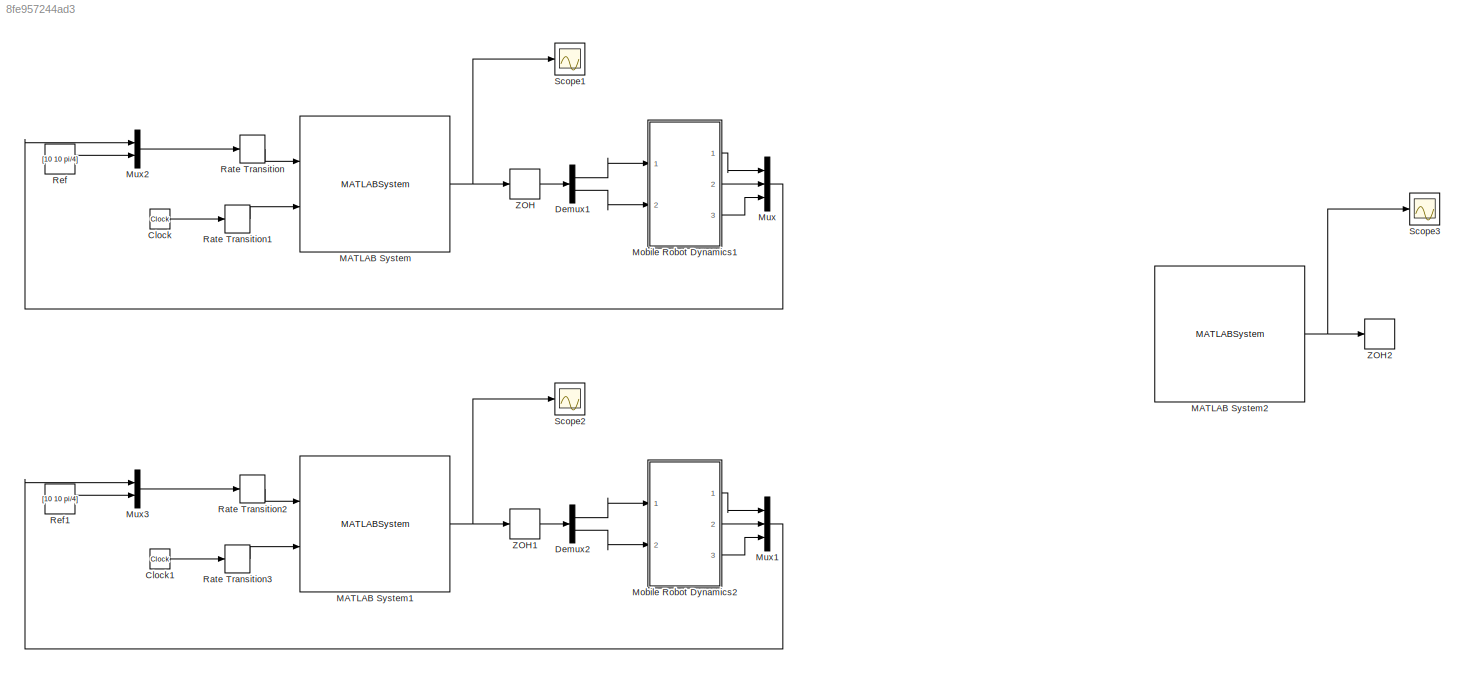
MODEL slx_8fe957244ad3
KIND model
CONFIG AbsTol = auto
CONFIG EnableMultiTasking = off
CONFIG FixedStep = auto
CONFIG MaxStep = auto
CONFIG MinStep = auto
CONFIG RelTol = 1e-3
CONFIG SampleTimeConstraint = Unconstrained
CONFIG Solver = FixedStepAuto
CONFIG SolverName = FixedStepAuto
CONFIG StartTime = 0.0
CONFIG StopTime = 100
BLOCK [Clock] Clock
BLOCK [Clock] Clock1
BLOCK [Demux] Demux1
  DisplayOption = bar
  Outputs = 2
  Ports = [1, 2]
BLOCK [Demux] Demux2
  DisplayOption = bar
  Outputs = 2
  Ports = [1, 2]
BLOCK [MATLABSystem] MATLAB System
  MaskDisplay = disp('controller');\nport_label('input',1,'x');\nport_label('input',2,'t');\nport_label('output',1,'u');
  MaskType = controller
  Ports = [2, 1]
  SimulateUsing = Interpreted execution
  System = controller
BLOCK [MATLABSystem] MATLAB System1
  MaskDisplay = disp('controller');\nport_label('input',1,'x');\nport_label('input',2,'t');\nport_label('output',1,'u');
  MaskType = controller
  Ports = [2, 1]
  SimulateUsing = Interpreted execution
  System = controller
BLOCK [MATLABSystem] MATLAB System2
  MaskDisplay = disp('controller');\nport_label('input',1,'x');\nport_label('input',2,'t');\nport_label('output',1,'u');
  MaskType = controller
  Ports = [2, 1]
  SimulateUsing = Interpreted execution
  System = controller
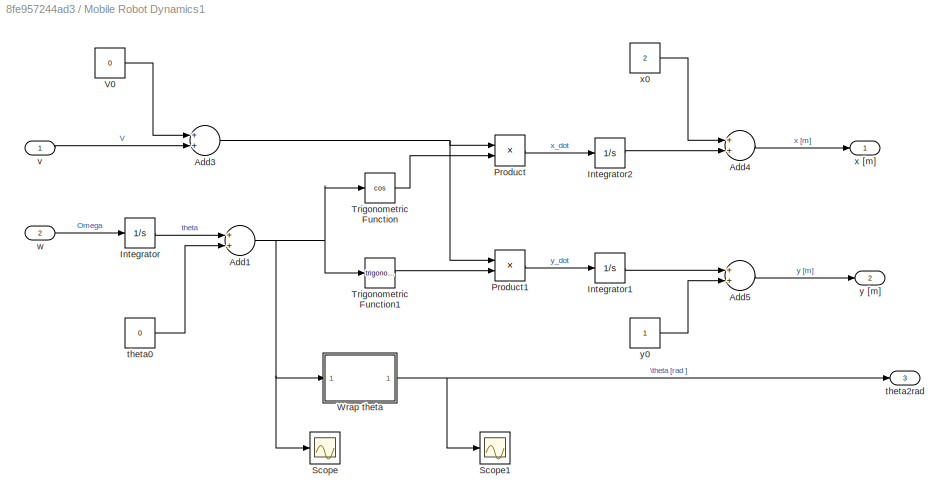
BLOCK [SubSystem] Mobile Robot Dynamics1
  Ports = [2, 3]
  RequestExecContextInheritance = off
BLOCK [Sum] Mobile Robot Dynamics1/Add1
  InputSameDT = off
  OutDataTypeStr = Inherit: Inherit via internal rule
  Ports = [2, 1]
  SaturateOnIntegerOverflow = off
BLOCK [Sum] Mobile Robot Dynamics1/Add3
  InputSameDT = off
  OutDataTypeStr = Inherit: Inherit via internal rule
  Ports = [2, 1]
  SaturateOnIntegerOverflow = off
BLOCK [Sum] Mobile Robot Dynamics1/Add4
  InputSameDT = off
  OutDataTypeStr = Inherit: Inherit via internal rule
  Ports = [2, 1]
  SaturateOnIntegerOverflow = off
BLOCK [Sum] Mobile Robot Dynamics1/Add5
  InputSameDT = off
  OutDataTypeStr = Inherit: Inherit via internal rule
  Ports = [2, 1]
  SaturateOnIntegerOverflow = off
BLOCK [Integrator] Mobile Robot Dynamics1/Integrator
  Ports = [1, 1]
BLOCK [Integrator] Mobile Robot Dynamics1/Integrator1
  Ports = [1, 1]
BLOCK [Integrator] Mobile Robot Dynamics1/Integrator2
  Ports = [1, 1]
BLOCK [Product] Mobile Robot Dynamics1/Product
  InputSameDT = off
  OutDataTypeStr = Inherit: Inherit via internal rule
  Ports = [2, 1]
  RndMeth = Floor
  SaturateOnIntegerOverflow = off
BLOCK [Product] Mobile Robot Dynamics1/Product1
  InputSameDT = off
  OutDataTypeStr = Inherit: Inherit via internal rule
  Ports = [2, 1]
  RndMeth = Floor
  SaturateOnIntegerOverflow = off
BLOCK [Scope] Mobile Robot Dynamics1/Scope
  Floating = off
  NumInputPorts = 1
  Ports = [1]
  ScopeSpecificationString = Simulink.scopes.TimeScopeBlockCfg('CurrentConfiguration', extmgr.ConfigurationSet(extmgr.Configuration('Core','General UI',true),extmgr.Configuration('Core','Source UI',true),extmgr.Configuration('Sources','WiredSimulink',true,'DataLoggingVariableName','ScopeData1'),extmgr.Configuration('Visuals','Time Domain',true,'SerializedDisplays',{struct('MinYLimReal','-0.1087','MaxYLimReal','0.31458','YLabe...<+1361ch>
BLOCK [Scope] Mobile Robot Dynamics1/Scope1
  Floating = off
  NumInputPorts = 1
  Ports = [1]
  ScopeSpecificationString = Simulink.scopes.TimeScopeBlockCfg('CurrentConfiguration', extmgr.ConfigurationSet(extmgr.Configuration('Core','General UI',true),extmgr.Configuration('Core','Source UI',true),extmgr.Configuration('Sources','WiredSimulink',true,'DataLoggingVariableName','ScopeData2'),extmgr.Configuration('Visuals','Time Domain',true,'SerializedDisplays',{struct('MinYLimReal','-0.78537','MaxYLimReal','7.06836','YLab...<+1359ch>
BLOCK [Trigonometry] Mobile Robot Dynamics1/Trigonometric Function
  Operator = cos
  Ports = [1, 1]
BLOCK [Trigonometry] Mobile Robot Dynamics1/Trigonometric Function1
  Ports = [1, 1]
BLOCK [Constant] Mobile Robot Dynamics1/V0 
  Value = 0
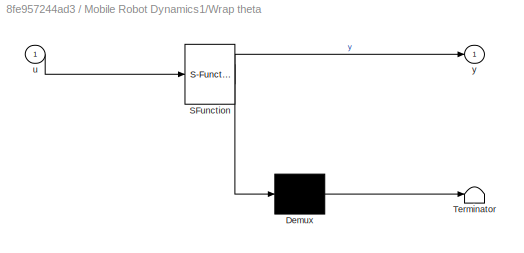
BLOCK [SubSystem] Mobile Robot Dynamics1/Wrap theta
  ErrorFcn = Stateflow.Translate.translate
  PermitHierarchicalResolution = ExplicitOnly
  Ports = [1, 1]
  RequestExecContextInheritance = off
  SFBlockType = MATLAB Function
  TreatAsAtomicUnit = on
BLOCK [Demux] Mobile Robot Dynamics1/Wrap theta/ Demux 
  Outputs = 1
  Ports = [1, 1]
BLOCK [S-Function] Mobile Robot Dynamics1/Wrap theta/ SFunction 
  EnableBusSupport = on
  FunctionName = sf_sfun
  PortCounts = [1 2]
  Ports = [1, 2]
  SFcnIsStateOwnerBlock = off
  SFunctionDeploymentMode = off
  Tag = Stateflow S-Function 1
BLOCK [Terminator] Mobile Robot Dynamics1/Wrap theta/ Terminator 
BLOCK [Inport] Mobile Robot Dynamics1/Wrap theta/u
  IconDisplay = Port number
BLOCK [Outport] Mobile Robot Dynamics1/Wrap theta/y
  IconDisplay = Port number
  VectorParamsAs1DForOutWhenUnconnected = off
BLOCK [Constant] Mobile Robot Dynamics1/theta0
  Value = 0
BLOCK [Outport] Mobile Robot Dynamics1/theta2rad
  IconDisplay = Port number
  Port = 3
  VectorParamsAs1DForOutWhenUnconnected = off
BLOCK [Inport] Mobile Robot Dynamics1/v
  IconDisplay = Port number
BLOCK [Inport] Mobile Robot Dynamics1/w
  IconDisplay = Port number
  Port = 2
BLOCK [Outport] Mobile Robot Dynamics1/x [m]
  IconDisplay = Port number
  VectorParamsAs1DForOutWhenUnconnected = off
BLOCK [Constant] Mobile Robot Dynamics1/x0
  Value = 2
BLOCK [Outport] Mobile Robot Dynamics1/y [m]
  IconDisplay = Port number
  Port = 2
  VectorParamsAs1DForOutWhenUnconnected = off
BLOCK [Constant] Mobile Robot Dynamics1/y0
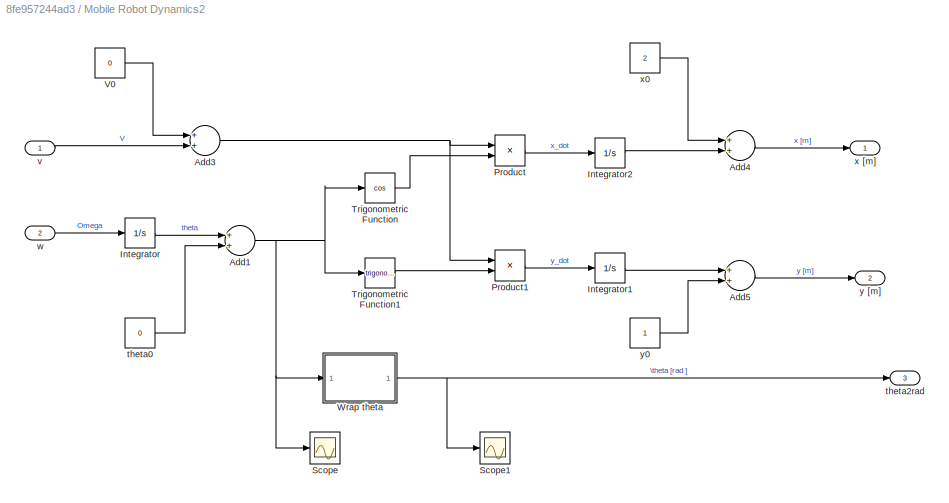
BLOCK [SubSystem] Mobile Robot Dynamics2
  Ports = [2, 3]
  RequestExecContextInheritance = off
BLOCK [Sum] Mobile Robot Dynamics2/Add1
  InputSameDT = off
  OutDataTypeStr = Inherit: Inherit via internal rule
  Ports = [2, 1]
  SaturateOnIntegerOverflow = off
BLOCK [Sum] Mobile Robot Dynamics2/Add3
  InputSameDT = off
  OutDataTypeStr = Inherit: Inherit via internal rule
  Ports = [2, 1]
  SaturateOnIntegerOverflow = off
BLOCK [Sum] Mobile Robot Dynamics2/Add4
  InputSameDT = off
  OutDataTypeStr = Inherit: Inherit via internal rule
  Ports = [2, 1]
  SaturateOnIntegerOverflow = off
BLOCK [Sum] Mobile Robot Dynamics2/Add5
  InputSameDT = off
  OutDataTypeStr = Inherit: Inherit via internal rule
  Ports = [2, 1]
  SaturateOnIntegerOverflow = off
BLOCK [Integrator] Mobile Robot Dynamics2/Integrator
  Ports = [1, 1]
BLOCK [Integrator] Mobile Robot Dynamics2/Integrator1
  Ports = [1, 1]
BLOCK [Integrator] Mobile Robot Dynamics2/Integrator2
  Ports = [1, 1]
BLOCK [Product] Mobile Robot Dynamics2/Product
  InputSameDT = off
  OutDataTypeStr = Inherit: Inherit via internal rule
  Ports = [2, 1]
  RndMeth = Floor
  SaturateOnIntegerOverflow = off
BLOCK [Product] Mobile Robot Dynamics2/Product1
  InputSameDT = off
  OutDataTypeStr = Inherit: Inherit via internal rule
  Ports = [2, 1]
  RndMeth = Floor
  SaturateOnIntegerOverflow = off
BLOCK [Scope] Mobile Robot Dynamics2/Scope
  Floating = off
  NumInputPorts = 1
  Ports = [1]
  ScopeSpecificationString = Simulink.scopes.TimeScopeBlockCfg('CurrentConfiguration', extmgr.ConfigurationSet(extmgr.Configuration('Core','General UI',true),extmgr.Configuration('Core','Source UI',true),extmgr.Configuration('Sources','WiredSimulink',true,'DataLoggingVariableName','ScopeData1'),extmgr.Configuration('Visuals','Time Domain',true,'SerializedDisplays',{struct('MinYLimReal','-0.1087','MaxYLimReal','0.31458','YLabe...<+1361ch>
BLOCK [Scope] Mobile Robot Dynamics2/Scope1
  Floating = off
  NumInputPorts = 1
  Ports = [1]
  ScopeSpecificationString = Simulink.scopes.TimeScopeBlockCfg('CurrentConfiguration', extmgr.ConfigurationSet(extmgr.Configuration('Core','General UI',true),extmgr.Configuration('Core','Source UI',true),extmgr.Configuration('Sources','WiredSimulink',true,'DataLoggingVariableName','ScopeData2'),extmgr.Configuration('Visuals','Time Domain',true,'SerializedDisplays',{struct('MinYLimReal','-0.78537','MaxYLimReal','7.06836','YLab...<+1359ch>
BLOCK [Trigonometry] Mobile Robot Dynamics2/Trigonometric Function
  Operator = cos
  Ports = [1, 1]
BLOCK [Trigonometry] Mobile Robot Dynamics2/Trigonometric Function1
  Ports = [1, 1]
BLOCK [Constant] Mobile Robot Dynamics2/V0 
  Value = 0
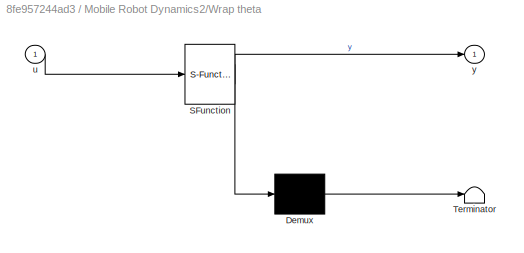
BLOCK [SubSystem] Mobile Robot Dynamics2/Wrap theta
  ErrorFcn = Stateflow.Translate.translate
  PermitHierarchicalResolution = ExplicitOnly
  Ports = [1, 1]
  RequestExecContextInheritance = off
  SFBlockType = MATLAB Function
  TreatAsAtomicUnit = on
BLOCK [Demux] Mobile Robot Dynamics2/Wrap theta/ Demux 
  Outputs = 1
  Ports = [1, 1]
BLOCK [S-Function] Mobile Robot Dynamics2/Wrap theta/ SFunction 
  EnableBusSupport = on
  FunctionName = sf_sfun
  PortCounts = [1 2]
  Ports = [1, 2]
  SFcnIsStateOwnerBlock = off
  SFunctionDeploymentMode = off
  Tag = Stateflow S-Function 2
BLOCK [Terminator] Mobile Robot Dynamics2/Wrap theta/ Terminator 
BLOCK [Inport] Mobile Robot Dynamics2/Wrap theta/u
  IconDisplay = Port number
BLOCK [Outport] Mobile Robot Dynamics2/Wrap theta/y
  IconDisplay = Port number
  VectorParamsAs1DForOutWhenUnconnected = off
BLOCK [Constant] Mobile Robot Dynamics2/theta0
  Value = 0
BLOCK [Outport] Mobile Robot Dynamics2/theta2rad
  IconDisplay = Port number
  Port = 3
  VectorParamsAs1DForOutWhenUnconnected = off
BLOCK [Inport] Mobile Robot Dynamics2/v
  IconDisplay = Port number
BLOCK [Inport] Mobile Robot Dynamics2/w
  IconDisplay = Port number
  Port = 2
BLOCK [Outport] Mobile Robot Dynamics2/x [m]
  IconDisplay = Port number
  VectorParamsAs1DForOutWhenUnconnected = off
BLOCK [Constant] Mobile Robot Dynamics2/x0
  Value = 2
BLOCK [Outport] Mobile Robot Dynamics2/y [m]
  IconDisplay = Port number
  Port = 2
  VectorParamsAs1DForOutWhenUnconnected = off
BLOCK [Constant] Mobile Robot Dynamics2/y0
BLOCK [Mux] Mux
  DisplayOption = bar
  Inputs = 3
  Ports = [3, 1]
BLOCK [Mux] Mux1
  DisplayOption = bar
  Inputs = 3
  Ports = [3, 1]
BLOCK [Mux] Mux2
  DisplayOption = bar
  Inputs = 2
  Ports = [2, 1]
BLOCK [Mux] Mux3
  DisplayOption = bar
  Inputs = 2
  Ports = [2, 1]
BLOCK [RateTransition] Rate Transition
  OutPortSampleTime = 0.5
BLOCK [RateTransition] Rate Transition1
  OutPortSampleTime = 0.5
BLOCK [RateTransition] Rate Transition2
  OutPortSampleTime = 0.5
BLOCK [RateTransition] Rate Transition3
  OutPortSampleTime = 0.5
BLOCK [Constant] Ref
  Value = [10 10 pi/4]
BLOCK [Constant] Ref1
  Value = [10 10 pi/4]
BLOCK [Scope] Scope1
  Floating = off
  NumInputPorts = 1
  Ports = [1]
  ScopeSpecificationString = Simulink.scopes.TimeScopeBlockCfg('CurrentConfiguration', extmgr.ConfigurationSet(extmgr.Configuration('Core','General UI',true),extmgr.Configuration('Core','Source UI',true),extmgr.Configuration('Sources','WiredSimulink',true,'DataLoggingVariableName','ScopeData1','DataLoggingLimitDataPoints',true,'DataLoggingSaveFormat','Array','DataLoggingDecimation','1','DataLoggingDecimateData',true),extmgr.C...<+1698ch>
BLOCK [Scope] Scope2
  Floating = off
  NumInputPorts = 1
  Ports = [1]
  ScopeSpecificationString = Simulink.scopes.TimeScopeBlockCfg('CurrentConfiguration', extmgr.ConfigurationSet(extmgr.Configuration('Core','General UI',true),extmgr.Configuration('Core','Source UI',true),extmgr.Configuration('Sources','WiredSimulink',true,'DataLoggingVariableName','ScopeData1','DataLoggingLimitDataPoints',true,'DataLoggingSaveFormat','Array','DataLoggingDecimation','1','DataLoggingDecimateData',true),extmgr.C...<+1698ch>
BLOCK [Scope] Scope3
  Floating = off
  NumInputPorts = 1
  Ports = [1]
  ScopeSpecificationString = Simulink.scopes.TimeScopeBlockCfg('CurrentConfiguration', extmgr.ConfigurationSet(extmgr.Configuration('Core','General UI',true),extmgr.Configuration('Core','Source UI',true),extmgr.Configuration('Sources','WiredSimulink',true,'DataLoggingVariableName','ScopeData2','DataLoggingLimitDataPoints',true,'DataLoggingSaveFormat','Array','DataLoggingDecimation','1','DataLoggingDecimateData',true),extmgr.C...<+1698ch>
BLOCK [ZeroOrderHold] ZOH
  SampleTime = 0.5
BLOCK [ZeroOrderHold] ZOH1
  SampleTime = 0.5
BLOCK [ZeroOrderHold] ZOH2
  SampleTime = 0.5
LINE Clock1:1 -> Rate Transition3:1
LINE Clock:1 -> Rate Transition1:1
LINE Demux1:1 -> Mobile Robot Dynamics1:1
LINE Demux1:2 -> Mobile Robot Dynamics1:2
LINE Demux2:1 -> Mobile Robot Dynamics2:1
LINE Demux2:2 -> Mobile Robot Dynamics2:2
NET MATLAB System1:1 -> Scope2:1, ZOH1:1
NET MATLAB System2:1 -> Scope3:1, ZOH2:1
NET MATLAB System:1 -> Scope1:1, ZOH:1
NET Mobile Robot Dynamics1/Add1:1 -> Mobile Robot Dynamics1/Scope:1, Mobile Robot Dynamics1/Trigonometric Function1:1, Mobile Robot Dynamics1/Trigonometric Function:1, Mobile Robot Dynamics1/Wrap theta:1
NET Mobile Robot Dynamics1/Add3:1 -> Mobile Robot Dynamics1/Product1:1, Mobile Robot Dynamics1/Product:1
LINE Mobile Robot Dynamics1/Add4:1 -> Mobile Robot Dynamics1/x [m]:1
LINE Mobile Robot Dynamics1/Add5:1 -> Mobile Robot Dynamics1/y [m]:1
LINE Mobile Robot Dynamics1/Integrator1:1 -> Mobile Robot Dynamics1/Add5:1
LINE Mobile Robot Dynamics1/Integrator2:1 -> Mobile Robot Dynamics1/Add4:2
LINE Mobile Robot Dynamics1/Integrator:1 -> Mobile Robot Dynamics1/Add1:1
LINE Mobile Robot Dynamics1/Product1:1 -> Mobile Robot Dynamics1/Integrator1:1
LINE Mobile Robot Dynamics1/Product:1 -> Mobile Robot Dynamics1/Integrator2:1
LINE Mobile Robot Dynamics1/Trigonometric Function1:1 -> Mobile Robot Dynamics1/Product1:2
LINE Mobile Robot Dynamics1/Trigonometric Function:1 -> Mobile Robot Dynamics1/Product:2
LINE Mobile Robot Dynamics1/V0 :1 -> Mobile Robot Dynamics1/Add3:1
NET Mobile Robot Dynamics1/Wrap theta:1 -> Mobile Robot Dynamics1/Scope1:1, Mobile Robot Dynamics1/theta2rad:1
LINE Mobile Robot Dynamics1/theta0:1 -> Mobile Robot Dynamics1/Add1:2
LINE Mobile Robot Dynamics1/v:1 -> Mobile Robot Dynamics1/Add3:2
LINE Mobile Robot Dynamics1/w:1 -> Mobile Robot Dynamics1/Integrator:1
LINE Mobile Robot Dynamics1/x0:1 -> Mobile Robot Dynamics1/Add4:1
LINE Mobile Robot Dynamics1/y0:1 -> Mobile Robot Dynamics1/Add5:2
LINE Mobile Robot Dynamics1:1 -> Mux:1
LINE Mobile Robot Dynamics1:2 -> Mux:2
LINE Mobile Robot Dynamics1:3 -> Mux:3
NET Mobile Robot Dynamics2/Add1:1 -> Mobile Robot Dynamics2/Scope:1, Mobile Robot Dynamics2/Trigonometric Function1:1, Mobile Robot Dynamics2/Trigonometric Function:1, Mobile Robot Dynamics2/Wrap theta:1
NET Mobile Robot Dynamics2/Add3:1 -> Mobile Robot Dynamics2/Product1:1, Mobile Robot Dynamics2/Product:1
LINE Mobile Robot Dynamics2/Add4:1 -> Mobile Robot Dynamics2/x [m]:1
LINE Mobile Robot Dynamics2/Add5:1 -> Mobile Robot Dynamics2/y [m]:1
LINE Mobile Robot Dynamics2/Integrator1:1 -> Mobile Robot Dynamics2/Add5:1
LINE Mobile Robot Dynamics2/Integrator2:1 -> Mobile Robot Dynamics2/Add4:2
LINE Mobile Robot Dynamics2/Integrator:1 -> Mobile Robot Dynamics2/Add1:1
LINE Mobile Robot Dynamics2/Product1:1 -> Mobile Robot Dynamics2/Integrator1:1
LINE Mobile Robot Dynamics2/Product:1 -> Mobile Robot Dynamics2/Integrator2:1
LINE Mobile Robot Dynamics2/Trigonometric Function1:1 -> Mobile Robot Dynamics2/Product1:2
LINE Mobile Robot Dynamics2/Trigonometric Function:1 -> Mobile Robot Dynamics2/Product:2
LINE Mobile Robot Dynamics2/V0 :1 -> Mobile Robot Dynamics2/Add3:1
NET Mobile Robot Dynamics2/Wrap theta:1 -> Mobile Robot Dynamics2/Scope1:1, Mobile Robot Dynamics2/theta2rad:1
LINE Mobile Robot Dynamics2/theta0:1 -> Mobile Robot Dynamics2/Add1:2
LINE Mobile Robot Dynamics2/v:1 -> Mobile Robot Dynamics2/Add3:2
LINE Mobile Robot Dynamics2/w:1 -> Mobile Robot Dynamics2/Integrator:1
LINE Mobile Robot Dynamics2/x0:1 -> Mobile Robot Dynamics2/Add4:1
LINE Mobile Robot Dynamics2/y0:1 -> Mobile Robot Dynamics2/Add5:2
LINE Mobile Robot Dynamics2:1 -> Mux1:1
LINE Mobile Robot Dynamics2:2 -> Mux1:2
LINE Mobile Robot Dynamics2:3 -> Mux1:3
LINE Mux1:1 -> Mux3:1
LINE Mux2:1 -> Rate Transition:1
LINE Mux3:1 -> Rate Transition2:1
LINE Mux:1 -> Mux2:1
LINE Rate Transition1:1 -> MATLAB System:2
LINE Rate Transition2:1 -> MATLAB System1:1
LINE Rate Transition3:1 -> MATLAB System1:2
LINE Rate Transition:1 -> MATLAB System:1
LINE Ref1:1 -> Mux3:2
LINE Ref:1 -> Mux2:2
LINE ZOH1:1 -> Demux2:1
LINE ZOH:1 -> Demux1:1
note: NET lines group one-source signal fan-out (src -> all destinations, sorted); 1:1 wires keep LINE
CHART Mobile Robot Dynamics1/Wrap theta states=1 transitions=1
  STATE_LABEL 'eML_blk_kernel()'
  STATE_LABEL 'SCRIPT:\nfunction y = Theta(u)\n%#codegen\n\npositiveInput = (u > 0);\ny = mod(u, 2*pi);\ny((u == 0) & positiveInput) = 2*pi;'
CHART Mobile Robot Dynamics2/Wrap theta states=1 transitions=1
  STATE_LABEL 'eML_blk_kernel()'
  STATE_LABEL 'SCRIPT:\nfunction y = Theta(u)\n%#codegen\n\npositiveInput = (u > 0);\ny = mod(u, 2*pi);\ny((u == 0) & positiveInput) = 2*pi;'
